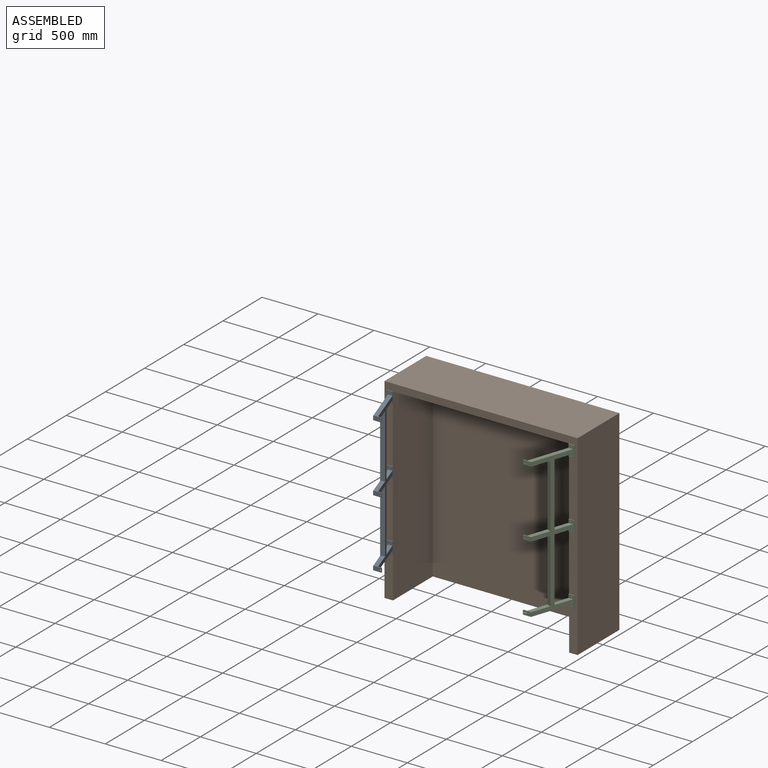
[diagram: assembled view]
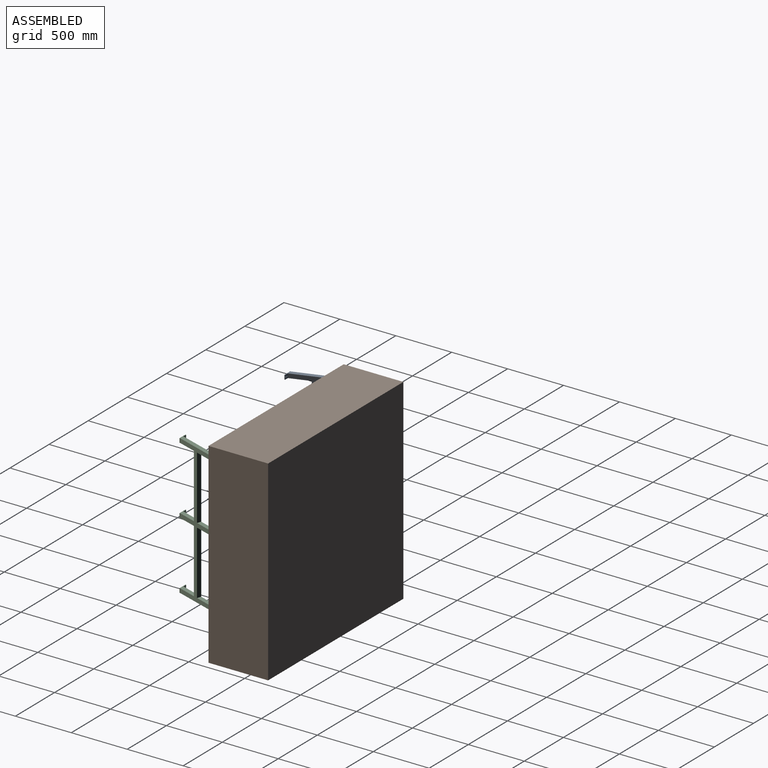
[diagram: assembled view, second angle]
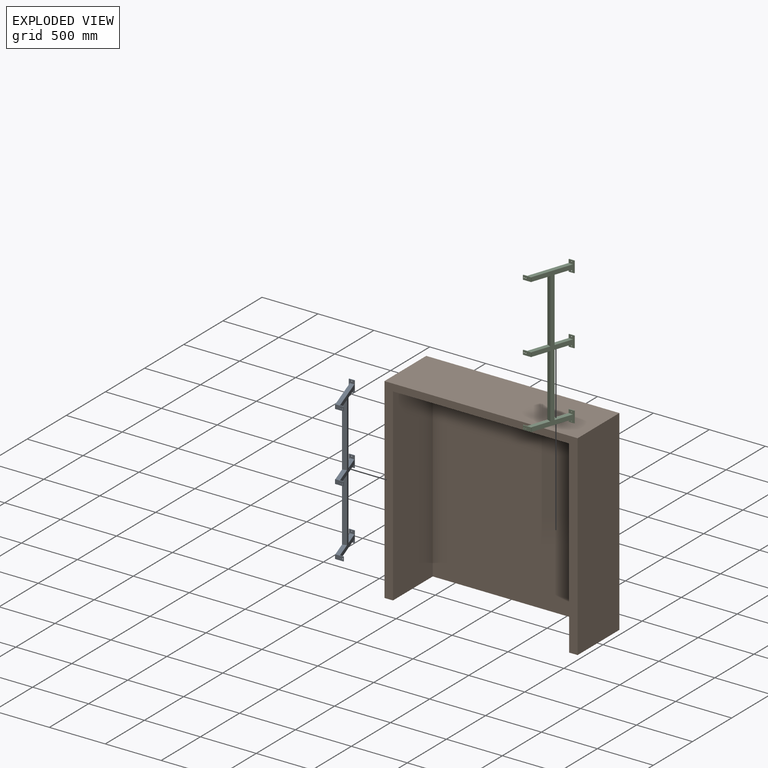
[diagram: exploded view]
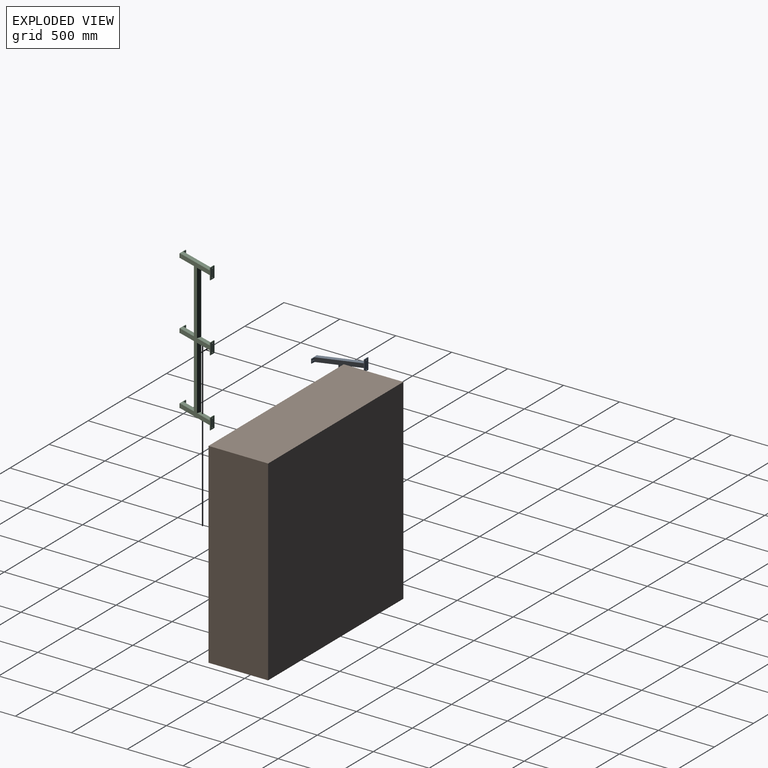
[diagram: exploded view, second angle]
ASSEMBLY  parts=3 mates=6
PART A: 109 faces, bbox 206.4x1314.5x368.3 mm
  f0: plane 179x129.58mm, normal (0,1,0), area 7177.2mm2, adj f7,f8,f26,f27,f28,f29,f95
  f1: plane 50.8x6.35mm, normal (0,1,0), area 322.6mm2, adj f2,f4,f5,f6
  f2: plane 101.6x6.35mm, normal (-1,0,0), area 645.2mm2, adj f1,f3,f5,f6
  f3: plane 50.8x6.35mm, normal (0,-1,0), area 322.6mm2, adj f2,f4,f5,f6
  f4: plane 101.6x6.35mm, normal (1,0,0), area 645.2mm2, adj f1,f3,f5,f6,f7
  f5: plane 101.6x50.8mm, normal (0,0,1), area 3466.2mm2, adj f1,f2,f3,f4,f8,f9,f10,f23
  f6: plane 101.6x50.8mm, normal (0,0,-1), area 4999.1mm2, adj f1,f2,f3,f4,f21,f22
  f7: plane 1250.95x355.6mm, normal (0.95,0,-0.32), area 86227.2mm2, adj f0,f4,f9,f10,f26,f32,f33,f37
  f8: plane 1250.95x355.6mm, normal (-0.95,0,0.32), area 86227.2mm2, adj f0,f5,f9,f10,f27,f32,f33,f38
  f9: plane 361.95x195.81mm, normal (0,-1,0), area 14784.2mm2, adj f5,f7,f8,f26,f27,f28,f29
  f10: plane 159.11x90.06mm, normal (0,1,0), area 6155.3mm2, adj f5,f7,f8,f96
  f11: plane 44.76x0.3mm, normal (0,-1,0), area 13.6mm2, adj f12,f14,f15,f16
  f12: plane 95.56x0.3mm, normal (1,0,0), area 29.1mm2, adj f11,f13,f15,f16
  f13: plane 44.76x0.3mm, normal (0,1,0), area 13.6mm2, adj f12,f14,f15,f16
  f14: plane 95.56x3.83mm, normal (-1,0,0), area 142mm2, adj f11,f13,f15,f16,f17,f19,f20
  f15: plane 95.56x44.76mm, normal (0,0,-1), area 2991.1mm2, adj f11,f12,f13,f14,f18,f19,f20,f23
  f16: plane 95.56x44.76mm, normal (0,0,1), area 4114.4mm2, adj f11,f12,f13,f14,f21,f22
  f17: plane 355.1x120.48mm, normal (-0.95,0,0.32), area 12020mm2, adj f14,f19,f20,f25
  f18: plane 358.62x121.68mm, normal (0.95,0,-0.32), area 12139.2mm2, adj f15,f19,f20,f25
  f19: plane 358.62x155.53mm, normal (0,1,0), area 12141.3mm2, adj f14,f15,f17,f18,f25
  f20: plane 358.62x155.53mm, normal (0,-1,0), area 12141.3mm2, adj f14,f15,f17,f18,f25
  f21: cylinder r=5.08mm len=10.16mm, axis (0,0,1), area 96.5mm2, adj f6,f16
  f22: cylinder r=5.08mm len=10.16mm, axis (0,0,1), area 96.5mm2, adj f6,f16
  f23: cylinder r=5.08mm len=10.16mm, axis (0,0,1), area 96.5mm2, adj f5,f15
  f24: cylinder r=5.08mm len=10.16mm, axis (0,0,1), area 96.5mm2, adj f5,f15
  f25: plane 33.85x32.06mm, normal (0,0,-1), area 1085mm2, adj f17,f18,f19,f20
  f26: plane 38.1x34.93mm, normal (0,0,-1), area 1168.5mm2, adj f0,f7,f9,f28,f30,f31
  f27: plane 38.1x6.35mm, normal (-1,0,0), area 241.9mm2, adj f0,f8,f9,f29
  f28: plane 38.1x6.35mm, normal (1,0,0), area 241.9mm2, adj f0,f9,f26,f29
  f29: plane 75.16x38.1mm, normal (0,0,1), area 2701.4mm2, adj f0,f9,f27,f28,f30,f31
  f30: cylinder r=5.08mm len=10.16mm, axis (0,0,1), area 202.7mm2, adj f26,f29
  f31: cylinder r=5.08mm len=10.16mm, axis (0,0,1), area 202.7mm2, adj f26,f29
  f32: plane 179x129.58mm, normal (0,-1,0), area 7177.2mm2, adj f7,f8,f87,f88,f89,f90,f95
  f33: plane 179x129.58mm, normal (0,-1,0), area 7177.2mm2, adj f7,f8,f57,f58,f59,f60,f93
  f34: plane 50.8x6.35mm, normal (0,1,0), area 322.6mm2, adj f35,f37,f38,f39
  f35: plane 101.6x6.35mm, normal (-1,0,0), area 645.2mm2, adj f34,f36,f38,f39
  f36: plane 50.8x6.35mm, normal (0,-1,0), area 322.6mm2, adj f35,f37,f38,f39
  f37: plane 101.6x6.35mm, normal (1,0,0), area 645.2mm2, adj f7,f34,f36,f38,f39
  f38: plane 101.6x50.8mm, normal (0,0,1), area 3466.2mm2, adj f8,f34,f35,f36,f37,f40,f41,f54
  f39: plane 101.6x50.8mm, normal (0,0,-1), area 4999.1mm2, adj f34,f35,f36,f37,f52,f53
  f40: plane 159.11x90.06mm, normal (0,-1,0), area 6155.3mm2, adj f7,f8,f38,f94
  f41: plane 361.95x195.81mm, normal (0,1,0), area 14784.2mm2, adj f7,f8,f38,f57,f58,f59,f60
  f42: plane 44.76x0.3mm, normal (0,-1,0), area 13.6mm2, adj f43,f45,f46,f47
  f43: plane 95.56x0.3mm, normal (1,0,0), area 29.1mm2, adj f42,f44,f46,f47
  f44: plane 44.76x0.3mm, normal (0,1,0), area 13.6mm2, adj f43,f45,f46,f47
  f45: plane 95.56x3.83mm, normal (-1,0,0), area 142mm2, adj f42,f44,f46,f47,f48,f50,f51
  f46: plane 95.56x44.76mm, normal (0,0,-1), area 2991.1mm2, adj f42,f43,f44,f45,f49,f50,f51,f54
  f47: plane 95.56x44.76mm, normal (0,0,1), area 4114.4mm2, adj f42,f43,f44,f45,f52,f53
  f48: plane 355.1x120.48mm, normal (-0.95,0,0.32), area 12020mm2, adj f45,f50,f51,f56
  f49: plane 358.62x121.68mm, normal (0.95,0,-0.32), area 12139.2mm2, adj f46,f50,f51,f56
  f50: plane 358.62x155.53mm, normal (0,1,0), area 12141.3mm2, adj f45,f46,f48,f49,f56
  f51: plane 358.62x155.53mm, normal (0,-1,0), area 12141.3mm2, adj f45,f46,f48,f49,f56
  f52: cylinder r=5.08mm len=10.16mm, axis (0,0,1), area 96.5mm2, adj f39,f47
  f53: cylinder r=5.08mm len=10.16mm, axis (0,0,1), area 96.5mm2, adj f39,f47
  f54: cylinder r=5.08mm len=10.16mm, axis (0,0,1), area 96.5mm2, adj f38,f46
  f55: cylinder r=5.08mm len=10.16mm, axis (0,0,1), area 96.5mm2, adj f38,f46
  f56: plane 33.85x32.05mm, normal (0,0,-1), area 1085mm2, adj f48,f49,f50,f51
  f57: plane 38.1x34.93mm, normal (0,0,-1), area 1168.5mm2, adj f7,f33,f41,f59,f61,f62
  f58: plane 38.1x6.35mm, normal (-1,0,0), area 241.9mm2, adj f8,f33,f41,f60
  f59: plane 38.1x6.35mm, normal (1,0,0), area 241.9mm2, adj f33,f41,f57,f60
  f60: plane 75.16x38.1mm, normal (0,0,1), area 2701.4mm2, adj f33,f41,f58,f59,f61,f62
  f61: cylinder r=5.08mm len=10.16mm, axis (0,0,1), area 202.7mm2, adj f57,f60
  f62: cylinder r=5.08mm len=10.16mm, axis (0,0,1), area 202.7mm2, adj f57,f60
  f63: plane 179x129.58mm, normal (0,1,0), area 7177.2mm2, adj f7,f8,f87,f88,f89,f90,f93
  f64: plane 50.8x6.35mm, normal (0,-1,0), area 322.6mm2, adj f65,f67,f68,f69
  f65: plane 101.6x6.35mm, normal (-1,0,0), area 645.2mm2, adj f64,f66,f68,f69
  f66: plane 50.8x6.35mm, normal (0,1,0), area 322.6mm2, adj f65,f67,f68,f69
  f67: plane 101.6x6.35mm, normal (1,0,0), area 645.2mm2, adj f7,f64,f66,f68,f69
  f68: plane 101.6x50.8mm, normal (0,0,1), area 3466.2mm2, adj f8,f64,f65,f66,f67,f70,f71,f84
  f69: plane 101.6x50.8mm, normal (0,0,-1), area 4999.1mm2, adj f64,f65,f66,f67,f82,f83
  f70: plane 159.11x90.06mm, normal (0,1,0), area 6155.3mm2, adj f7,f8,f68,f94
  f71: plane 159.11x90.06mm, normal (0,-1,0), area 6155.3mm2, adj f7,f8,f68,f96
  f72: plane 44.76x0.3mm, normal (0,1,0), area 13.6mm2, adj f73,f75,f76,f77
  f73: plane 95.55x0.3mm, normal (1,0,0), area 29.1mm2, adj f72,f74,f76,f77
  f74: plane 44.76x0.3mm, normal (0,-1,0), area 13.6mm2, adj f73,f75,f76,f77
  f75: plane 95.55x3.83mm, normal (-1,0,0), area 142mm2, adj f72,f74,f76,f77,f78,f80,f81
  f76: plane 95.55x44.76mm, normal (0,0,-1), area 2991.1mm2, adj f72,f73,f74,f75,f79,f80,f81,f84
  f77: plane 95.55x44.76mm, normal (0,0,1), area 4114.4mm2, adj f72,f73,f74,f75,f82,f83
  f78: plane 355.1x120.48mm, normal (-0.95,0,0.32), area 12020mm2, adj f75,f80,f81,f86
  f79: plane 358.62x121.68mm, normal (0.95,0,-0.32), area 12139.2mm2, adj f76,f80,f81,f86
  f80: plane 358.62x155.53mm, normal (0,-1,0), area 12141.3mm2, adj f75,f76,f78,f79,f86
  f81: plane 358.62x155.53mm, normal (0,1,0), area 12141.3mm2, adj f75,f76,f78,f79,f86
  f82: cylinder r=5.08mm len=10.16mm, axis (0,0,1), area 96.5mm2, adj f69,f77
  f83: cylinder r=5.08mm len=10.16mm, axis (0,0,1), area 96.5mm2, adj f69,f77
  f84: cylinder r=5.08mm len=10.16mm, axis (0,0,1), area 96.5mm2, adj f68,f76
  f85: cylinder r=5.08mm len=10.16mm, axis (0,0,1), area 96.5mm2, adj f68,f76
  f86: plane 33.85x32.05mm, normal (0,0,-1), area 1085mm2, adj f78,f79,f80,f81
  f87: plane 38.1x34.93mm, normal (0,0,-1), area 1168.5mm2, adj f7,f32,f63,f89,f91,f92
  f88: plane 38.1x6.35mm, normal (-1,0,0), area 241.9mm2, adj f8,f32,f63,f90
  f89: plane 38.1x6.35mm, normal (1,0,0), area 241.9mm2, adj f32,f63,f87,f90
  f90: plane 75.16x38.1mm, normal (0,0,1), area 2701.4mm2, adj f32,f63,f88,f89,f91,f92
  f91: cylinder r=5.08mm len=10.16mm, axis (0,0,1), area 202.7mm2, adj f87,f90
  f92: cylinder r=5.08mm len=10.16mm, axis (0,0,1), area 202.7mm2, adj f87,f90
  f93: plane 568.33x36.08mm, normal (0.32,0,0.95), area 21653.2mm2, adj f7,f8,f33,f63
  f94: plane 568.33x36.08mm, normal (-0.32,0,-0.95), area 21653.2mm2, adj f7,f8,f40,f70
  f95: plane 568.33x36.08mm, normal (0.32,0,0.95), area 21653.2mm2, adj f0,f7,f8,f32
  f96: plane 568.33x36.08mm, normal (-0.32,0,-0.95), area 21653.2mm2, adj f7,f8,f10,f71
  f97: plane 40.65x40.65mm, normal (0,-1,0), area 1027.5mm2, adj f99,f100,f101,f102
  f98: plane 40.65x40.65mm, normal (0,1,0), area 1027.5mm2, adj f99,f100,f101,f102
  f99: plane 568.33x30.36mm, normal (-0.95,0,0.32), area 18217.5mm2, adj f97,f98,f100,f101
  f100: plane 568.33x30.36mm, normal (0.32,0,0.95), area 18217.5mm2, adj f97,f98,f99,f102
  f101: plane 568.33x30.36mm, normal (-0.32,0,-0.95), area 18217.5mm2, adj f97,f98,f99,f102
  f102: plane 568.33x30.36mm, normal (0.95,0,-0.32), area 18217.5mm2, adj f97,f98,f100,f101
  f103: plane 568.33x30.36mm, normal (-0.95,0,0.32), area 18217.5mm2, adj f104,f105,f107,f108
  f104: plane 568.33x30.36mm, normal (0.32,0,0.95), area 18217.5mm2, adj f103,f106,f107,f108
  f105: plane 568.33x30.36mm, normal (-0.32,0,-0.95), area 18217.5mm2, adj f103,f106,f107,f108
  f106: plane 568.33x30.36mm, normal (0.95,0,-0.32), area 18217.5mm2, adj f104,f105,f107,f108
  f107: plane 40.65x40.65mm, normal (0,-1,0), area 1027.5mm2, adj f103,f104,f105,f106
  f108: plane 40.65x40.65mm, normal (0,1,0), area 1027.5mm2, adj f103,f104,f105,f106
PART B: 10 faces, bbox 1727.2x533.4x1752.6 mm
  f0: plane 1689.1x1574.8mm, normal (0,-1,0), area 2659994.7mm2, adj f2,f6,f7,f8
  f1: plane 1752.6x533.4mm, normal (-1,0,0), area 934836.8mm2, adj f2,f4,f5,f9
  f2: plane 1727.2x533.4mm, normal (0,0,-1), area 121290.1mm2, adj f0,f1,f3,f5,f6,f8,f9
  f3: plane 1752.6x533.4mm, normal (1,0,0), area 934836.8mm2, adj f2,f4,f5,f9
  f4: plane 1727.2x533.4mm, normal (0,0,1), area 921288.5mm2, adj f1,f3,f5,f9
  f5: plane 1752.6x1727.2mm, normal (0,1,0), area 3027090.7mm2, adj f1,f2,f3,f4
  f6: plane 1689.1x508mm, normal (1,0,0), area 858062.8mm2, adj f0,f2,f7,f9
  f7: plane 1574.8x508mm, normal (0,0,-1), area 799998.4mm2, adj f0,f6,f8,f9
  f8: plane 1689.1x508mm, normal (-1,0,0), area 858062.8mm2, adj f0,f2,f7,f9
  f9: plane 1752.6x1727.2mm, normal (0,-1,0), area 367096mm2, adj f1,f2,f3,f4,f6,f7,f8
PART C: same geometry as A
PLACE A rot(axis=(1,0,0),90deg) t=(-1702.16,-323.73,2547.07)mm
PLACE B t=(-1727.56,209.67,857.97)mm
PLACE C rot(axis=(0,0.71,-0.71),180deg) t=(-25.76,-323.73,1232.62)mm
MATE planar A.f4 <-> B.f6  axis (1,0,0) through (-1651.36,-330.08,1302.47)mm
MATE planar C.f3 <-> B.f7  axis (0,0,1) through (-51.16,-326.91,2547.07)mm
MATE planar C.f37 <-> B.f8  axis (-1,0,0) through (-76.56,-330.08,1248.5)mm
MATE planar C.f6 <-> B.f9  axis (0,1,0) through (-51.16,-323.73,2496.27)mm
MATE planar A.f34 <-> B.f7  axis (0,0,1) through (-1676.76,-326.91,2547.07)mm
MATE planar A.f6 <-> B.f9  axis (0,1,0) through (-1676.76,-323.73,1283.42)mm
